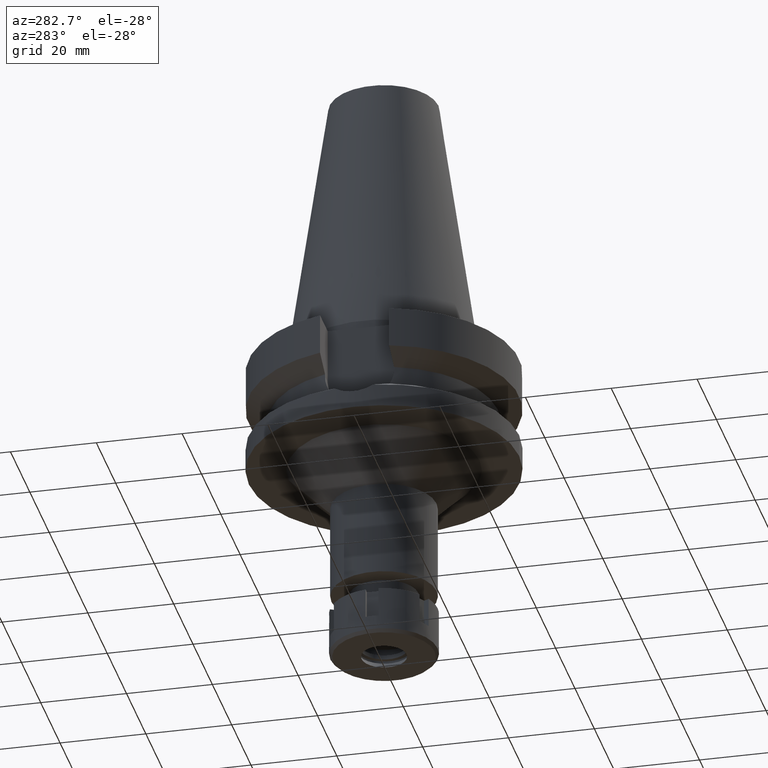
[diagram: clean part render]
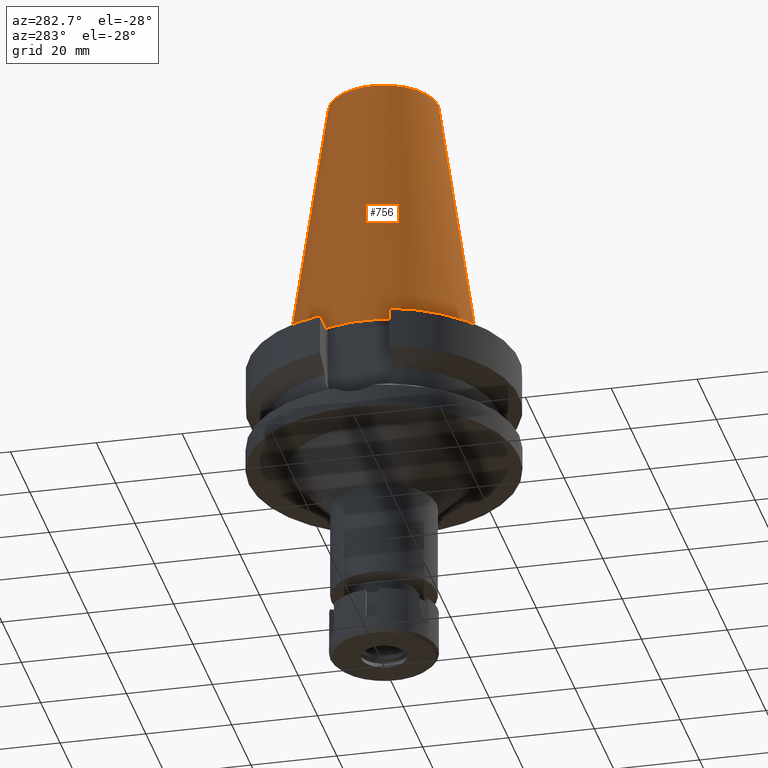
[diagram: same view with one face highlighted and labeled with its STEP entity id]
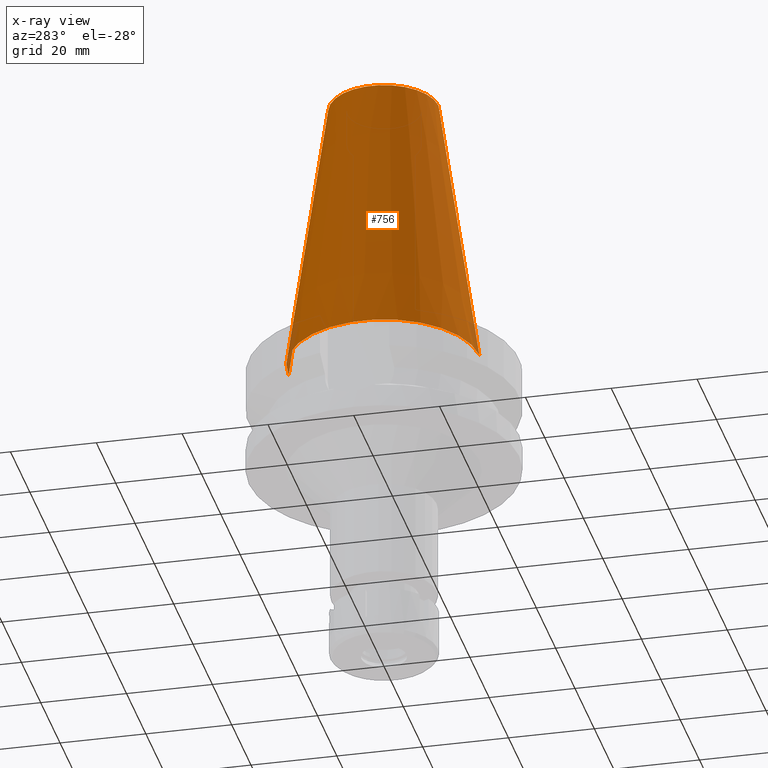
[diagram: x-ray of the same camera — body ghosted, the highlighted face saturated]
A machine part, auxiliary view. The second image highlights one B-rep face of the part: STEP entity #756.
The next image is the same camera in x-ray: the body ghosted, the highlighted face saturated — about 1% of this face is hidden behind the body in this view.
In plain terms, the highlighted conical surface has half-angle 8.297 deg.
Its self-contained STEP definition (entity closure, byte-faithful):
#69 = VERTEX_POINT ( 'NONE', #2371 ) ;
#81 = VERTEX_POINT ( 'NONE', #1016 ) ;
#83 = AXIS2_PLACEMENT_3D ( 'NONE', #1060, #1031, #2727 ) ;
#149 = AXIS2_PLACEMENT_3D ( 'NONE', #2541, #1682, #3066 ) ;
#184 = EDGE_CURVE ( 'NONE', #1300, #2726, #2362, .T. ) ;
#199 = DIRECTION ( 'NONE',  ( 0.0000000000000000000, 0.0000000000000000000, -1.000000000000000000 ) ) ;
#311 = CARTESIAN_POINT ( 'NONE',  ( 0.0000000000000000000, -12.68766899429999917, 65.40000000000000568 ) ) ;
#533 = EDGE_CURVE ( 'NONE', #81, #69, #3324, .T. ) ;
#573 = ORIENTED_EDGE ( 'NONE', *, *, #184, .F. ) ;
#756 = ADVANCED_FACE ( 'NONE', ( #1668 ), #1279, .T. ) ;
#955 = DIRECTION ( 'NONE',  ( 0.0000000000000000000, 0.1443043893539925626, -0.9895333461855498891 ) ) ;
#1016 = CARTESIAN_POINT ( 'NONE',  ( 0.0000000000000000000, -12.68766899429999917, 65.40000000000000568 ) ) ;
#1031 = DIRECTION ( 'NONE',  ( 0.0000000000000000000, 0.0000000000000000000, -1.000000000000000000 ) ) ;
#1060 = CARTESIAN_POINT ( 'NONE',  ( 0.0000000000000000000, 1.625106302469000024E-14, 65.40000000000000568 ) ) ;
#1123 = CARTESIAN_POINT ( 'NONE',  ( 0.0000000000000000000, -22.22500000000000142, 2.842170943039999687E-14 ) ) ;
#1218 = EDGE_LOOP ( 'NONE', ( #573, #1316, #1322, #2615 ) ) ;
#1279 = CONICAL_SURFACE ( 'NONE', #149, 17.45633449714999941, 0.1448099680379422438 ) ;
#1299 = VECTOR ( 'NONE', #1446, 1000.000000000000114 ) ;
#1300 = VERTEX_POINT ( 'NONE', #1123 ) ;
#1316 = ORIENTED_EDGE ( 'NONE', *, *, #3616, .F. ) ;
#1322 = ORIENTED_EDGE ( 'NONE', *, *, #533, .T. ) ;
#1446 = DIRECTION ( 'NONE',  ( 0.0000000000000000000, -0.1443043893539925626, -0.9895333461855498891 ) ) ;
#1511 = CARTESIAN_POINT ( 'NONE',  ( 0.0000000000000000000, 12.68766899429999917, 65.40000000000000568 ) ) ;
#1597 = VECTOR ( 'NONE', #955, 1000.000000000000114 ) ;
#1659 = AXIS2_PLACEMENT_3D ( 'NONE', #2731, #199, #3262 ) ;
#1668 = FACE_OUTER_BOUND ( 'NONE', #1218, .T. ) ;
#1682 = DIRECTION ( 'NONE',  ( 0.0000000000000000000, 0.0000000000000000000, -1.000000000000000000 ) ) ;
#2362 = CIRCLE ( 'NONE', #1659, 22.22500000000000142 ) ;
#2371 = CARTESIAN_POINT ( 'NONE',  ( 0.0000000000000000000, 12.68766899429999917, 65.40000000000000568 ) ) ;
#2541 = CARTESIAN_POINT ( 'NONE',  ( 0.0000000000000000000, 1.625106302469000024E-14, 32.70000000000000284 ) ) ;
#2615 = ORIENTED_EDGE ( 'NONE', *, *, #3545, .T. ) ;
#2726 = VERTEX_POINT ( 'NONE', #2923 ) ;
#2727 = DIRECTION ( 'NONE',  ( 0.0000000000000000000, -1.000000000000000000, 0.0000000000000000000 ) ) ;
#2731 = CARTESIAN_POINT ( 'NONE',  ( 0.0000000000000000000, 1.625106302469000024E-14, 2.842170943039999687E-14 ) ) ;
#2923 = CARTESIAN_POINT ( 'NONE',  ( 0.0000000000000000000, 22.22500000000000142, 7.105427357600999334E-14 ) ) ;
#3066 = DIRECTION ( 'NONE',  ( 0.0000000000000000000, -1.000000000000000000, 0.0000000000000000000 ) ) ;
#3127 = LINE ( 'NONE', #1511, #1597 ) ;
#3262 = DIRECTION ( 'NONE',  ( 0.0000000000000000000, -1.000000000000000000, 0.0000000000000000000 ) ) ;
#3324 = CIRCLE ( 'NONE', #83, 12.68766899429999917 ) ;
#3467 = LINE ( 'NONE', #311, #1299 ) ;
#3545 = EDGE_CURVE ( 'NONE', #69, #2726, #3127, .T. ) ;
#3616 = EDGE_CURVE ( 'NONE', #81, #1300, #3467, .T. ) ;